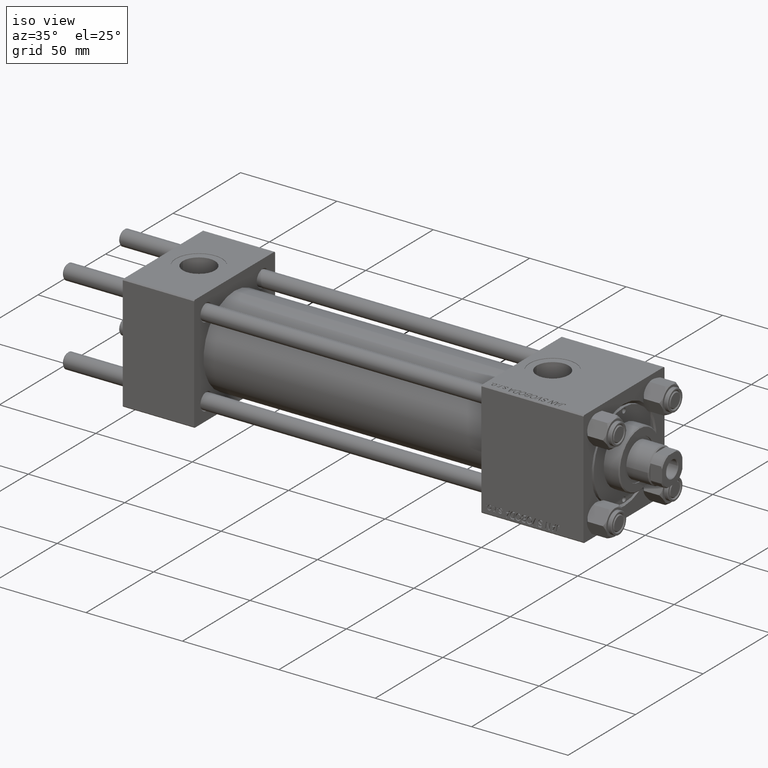
[diagram: clean part render]
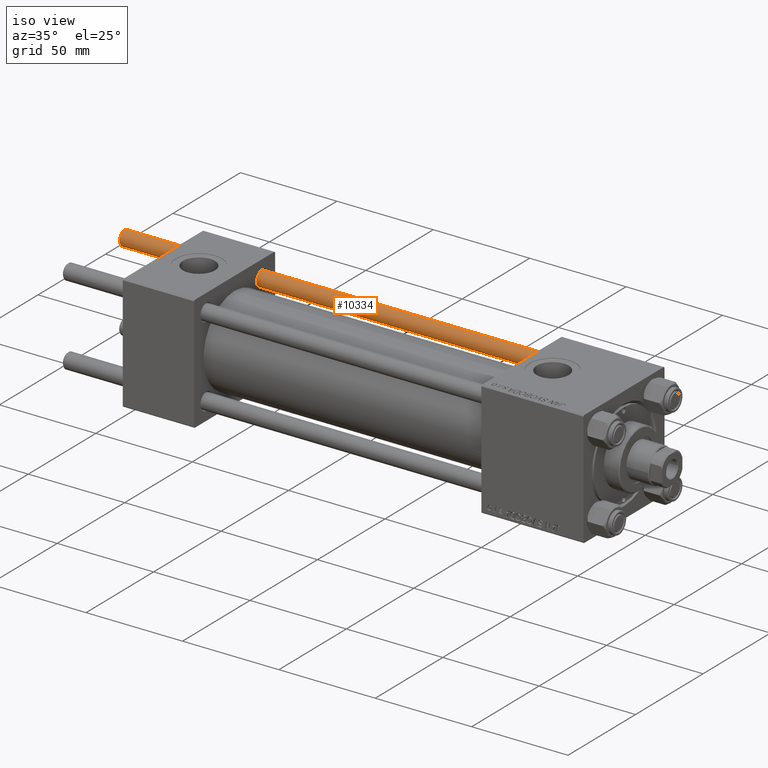
[diagram: same view with one face highlighted and labeled with its STEP entity id]
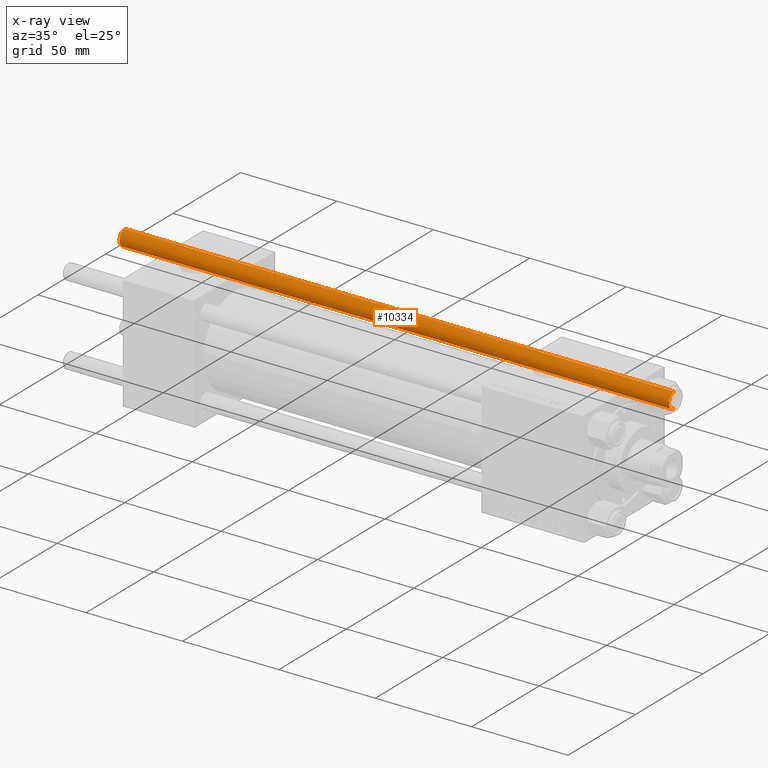
[diagram: x-ray of the same camera — body ghosted, the highlighted face saturated]
A machine part, iso view. The second image highlights one B-rep face of the part: STEP entity #10334.
The next image is the same camera in x-ray: the body ghosted, the highlighted face saturated — about 0% of this face is hidden behind the body in this view.
In plain terms, the highlighted cylindrical surface (edge-blend (fillet) strip) has radius 4 mm, axis along (-1, -0, -0).
Its self-contained STEP definition (entity closure, byte-faithful):
#4 = CARTESIAN_POINT ( 'NONE',  ( -4.000000000000000000, 0.000000000000000000, 0.5000000000000004441 ) ) ;
#103 = AXIS2_PLACEMENT_3D ( 'NONE', #48416, #25893, #37299 ) ;
#140 = EDGE_CURVE ( 'NONE', #48677, #22963, #39037, .T. ) ;
#354 = CARTESIAN_POINT ( 'NONE',  ( 4.000000000000000000, 4.898587196589412829E-16, 0.5000000000000004441 ) ) ;
#503 = DIRECTION ( 'NONE',  ( -1.000000000000000000, 0.000000000000000000, 0.000000000000000000 ) ) ;
#1727 = EDGE_CURVE ( 'NONE', #22963, #4864, #38719, .T. ) ;
#3487 = AXIS2_PLACEMENT_3D ( 'NONE', #26400, #41859, #14523 ) ;
#4242 = CIRCLE ( 'NONE', #103, 4.000000000000000000 ) ;
#4864 = VERTEX_POINT ( 'NONE', #4 ) ;
#5531 = DIRECTION ( 'NONE',  ( -0.000000000000000000, -0.000000000000000000, -1.000000000000000000 ) ) ;
#8423 = ORIENTED_EDGE ( 'NONE', *, *, #12786, .T. ) ;
#9311 = CYLINDRICAL_SURFACE ( 'NONE', #13766, 4.000000000000000000 ) ;
#10334 = ADVANCED_FACE ( 'NONE', ( #13117 ), #9311, .T. ) ;
#12786 = EDGE_CURVE ( 'NONE', #4864, #25213, #4242, .T. ) ;
#13117 = FACE_OUTER_BOUND ( 'NONE', #30587, .T. ) ;
#13766 = AXIS2_PLACEMENT_3D ( 'NONE', #28556, #5531, #503 ) ;
#14523 = DIRECTION ( 'NONE',  ( 1.000000000000000000, 0.000000000000000000, 0.000000000000000000 ) ) ;
#17145 = EDGE_CURVE ( 'NONE', #48677, #25213, #29565, .T. ) ;
#17226 = VECTOR ( 'NONE', #18965, 1000.000000000000000 ) ;
#18316 = CARTESIAN_POINT ( 'NONE',  ( -4.000000000000000000, 0.000000000000000000, 285.5000000000000000 ) ) ;
#18965 = DIRECTION ( 'NONE',  ( -0.000000000000000000, -0.000000000000000000, -1.000000000000000000 ) ) ;
#22963 = VERTEX_POINT ( 'NONE', #18316 ) ;
#23783 = CARTESIAN_POINT ( 'NONE',  ( 4.000000000000000000, 4.898587196589412829E-16, 285.5000000000000000 ) ) ;
#25213 = VERTEX_POINT ( 'NONE', #354 ) ;
#25893 = DIRECTION ( 'NONE',  ( -0.000000000000000000, -0.000000000000000000, 1.000000000000000000 ) ) ;
#26400 = CARTESIAN_POINT ( 'NONE',  ( 0.000000000000000000, 0.000000000000000000, 285.5000000000000000 ) ) ;
#26806 = CARTESIAN_POINT ( 'NONE',  ( -4.000000000000000000, 0.000000000000000000, 286.0000000000000000 ) ) ;
#28368 = ORIENTED_EDGE ( 'NONE', *, *, #17145, .F. ) ;
#28556 = CARTESIAN_POINT ( 'NONE',  ( 0.000000000000000000, 0.000000000000000000, 286.0000000000000000 ) ) ;
#29565 = LINE ( 'NONE', #41220, #49558 ) ;
#30587 = EDGE_LOOP ( 'NONE', ( #28368, #30719, #37322, #8423 ) ) ;
#30719 = ORIENTED_EDGE ( 'NONE', *, *, #140, .T. ) ;
#37299 = DIRECTION ( 'NONE',  ( 1.000000000000000000, 0.000000000000000000, 0.000000000000000000 ) ) ;
#37322 = ORIENTED_EDGE ( 'NONE', *, *, #1727, .T. ) ;
#37667 = DIRECTION ( 'NONE',  ( -0.000000000000000000, -0.000000000000000000, -1.000000000000000000 ) ) ;
#38719 = LINE ( 'NONE', #26806, #17226 ) ;
#39037 = CIRCLE ( 'NONE', #3487, 4.000000000000000000 ) ;
#41220 = CARTESIAN_POINT ( 'NONE',  ( 4.000000000000000000, 4.898587196589412829E-16, 286.0000000000000000 ) ) ;
#41859 = DIRECTION ( 'NONE',  ( 0.000000000000000000, 0.000000000000000000, -1.000000000000000000 ) ) ;
#48416 = CARTESIAN_POINT ( 'NONE',  ( 0.000000000000000000, 0.000000000000000000, 0.5000000000000004441 ) ) ;
#48677 = VERTEX_POINT ( 'NONE', #23783 ) ;
#49558 = VECTOR ( 'NONE', #37667, 1000.000000000000000 ) ;